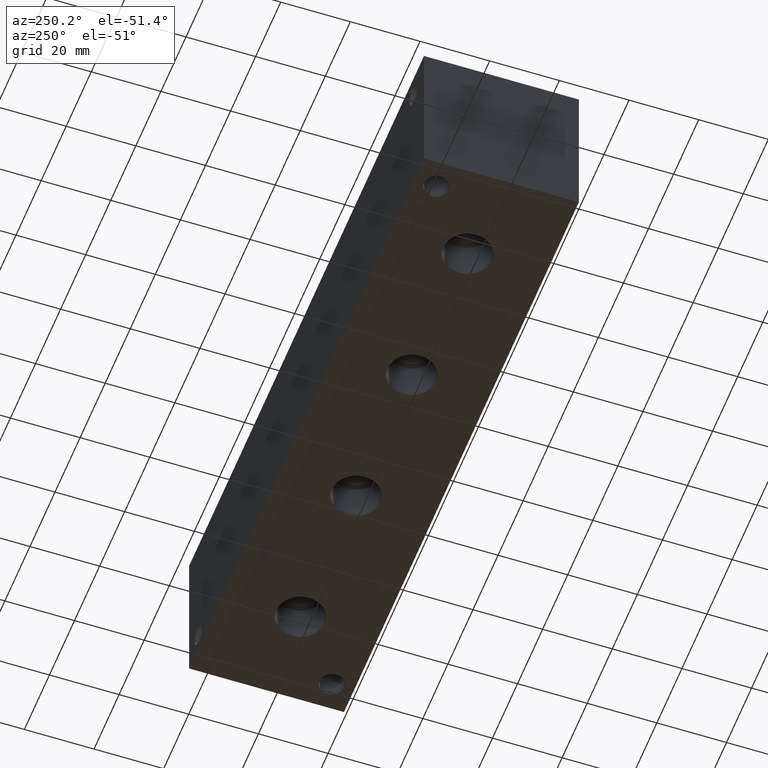
[diagram: clean part render]
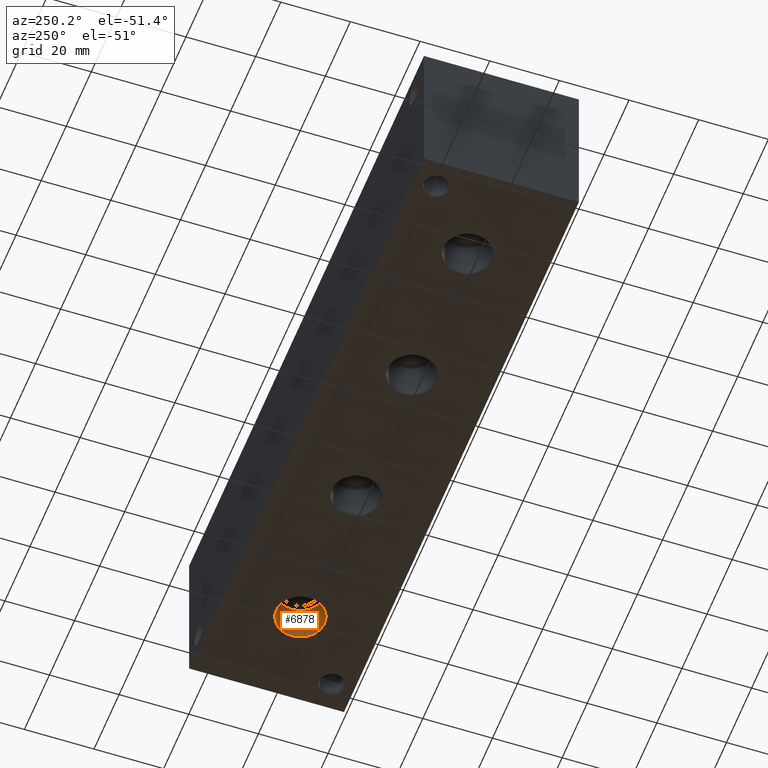
[diagram: same view with one face highlighted and labeled with its STEP entity id]
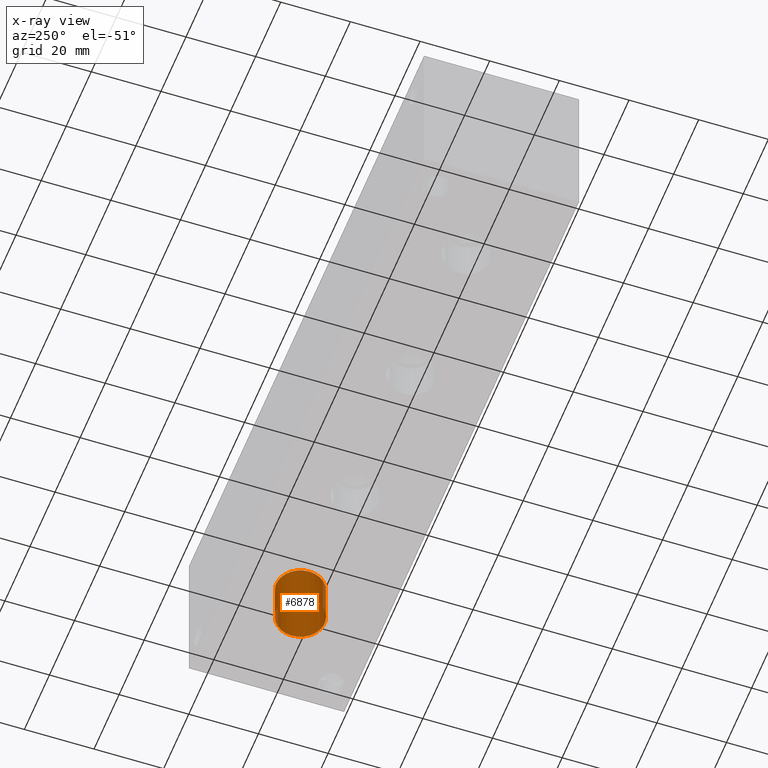
[diagram: x-ray of the same camera — body ghosted, the highlighted face saturated]
A machine part, auxiliary view. The second image highlights one B-rep face of the part: STEP entity #6878.
The next image is the same camera in x-ray: the body ghosted, the highlighted face saturated — about 0% of this face is hidden behind the body in this view.
In plain terms, the highlighted cylindrical surface (bore or boss wall) has radius 6.9342 mm, axis along (0, 0, -1).
Its self-contained STEP definition (entity closure, byte-faithful):
#28=CYLINDRICAL_SURFACE('',#7202,6.9342);
#89=CIRCLE('',#7199,6.9342);
#90=CIRCLE('',#7200,6.9342);
#92=CIRCLE('',#7203,6.9342);
#93=CIRCLE('',#7204,6.9342);
#733=FACE_OUTER_BOUND('',#1122,.T.);
#1122=EDGE_LOOP('',(#6025,#6026,#6027,#6028,#6029,#6030));
#1847=LINE('',#11466,#2556);
#2556=VECTOR('',#8515,6.9342);
#3329=VERTEX_POINT('',#11455);
#3330=VERTEX_POINT('',#11456);
#3332=VERTEX_POINT('',#11462);
#3333=VERTEX_POINT('',#11463);
#4242=EDGE_CURVE('',#3329,#3330,#89,.T.);
#4243=EDGE_CURVE('',#3330,#3329,#90,.T.);
#4245=EDGE_CURVE('',#3332,#3333,#92,.T.);
#4246=EDGE_CURVE('',#3333,#3332,#93,.T.);
#4247=EDGE_CURVE('',#3333,#3330,#1847,.T.);
#6025=ORIENTED_EDGE('',*,*,#4245,.F.);
#6026=ORIENTED_EDGE('',*,*,#4246,.F.);
#6027=ORIENTED_EDGE('',*,*,#4247,.T.);
#6028=ORIENTED_EDGE('',*,*,#4242,.F.);
#6029=ORIENTED_EDGE('',*,*,#4243,.F.);
#6030=ORIENTED_EDGE('',*,*,#4247,.F.);
#6878=ADVANCED_FACE('',(#733),#28,.F.);
#7199=AXIS2_PLACEMENT_3D('',#11457,#8503,#8504);
#7200=AXIS2_PLACEMENT_3D('',#11458,#8505,#8506);
#7202=AXIS2_PLACEMENT_3D('',#11461,#8509,#8510);
#7203=AXIS2_PLACEMENT_3D('',#11464,#8511,#8512);
#7204=AXIS2_PLACEMENT_3D('',#11465,#8513,#8514);
#8503=DIRECTION('center_axis',(0.,0.,-1.));
#8504=DIRECTION('ref_axis',(1.,0.,0.));
#8505=DIRECTION('center_axis',(0.,0.,-1.));
#8506=DIRECTION('ref_axis',(1.,0.,0.));
#8509=DIRECTION('center_axis',(0.,0.,-1.));
#8510=DIRECTION('ref_axis',(1.,0.,0.));
#8511=DIRECTION('center_axis',(0.,0.,1.));
#8512=DIRECTION('ref_axis',(1.,0.,0.));
#8513=DIRECTION('center_axis',(0.,0.,1.));
#8514=DIRECTION('ref_axis',(1.,0.,0.));
#8515=DIRECTION('',(0.,0.,1.));
#11455=CARTESIAN_POINT('',(167.259,22.225,11.4046));
#11456=CARTESIAN_POINT('',(153.3906,22.225,11.4046));
#11457=CARTESIAN_POINT('Origin',(160.3248,22.225,11.4046));
#11458=CARTESIAN_POINT('Origin',(160.3248,22.225,11.4046));
#11461=CARTESIAN_POINT('Origin',(160.3248,22.225,5.7023));
#11462=CARTESIAN_POINT('',(167.259,22.225,0.));
#11463=CARTESIAN_POINT('',(153.3906,22.225,0.));
#11464=CARTESIAN_POINT('Origin',(160.3248,22.225,0.));
#11465=CARTESIAN_POINT('Origin',(160.3248,22.225,0.));
#11466=CARTESIAN_POINT('',(153.3906,22.225,5.7023));